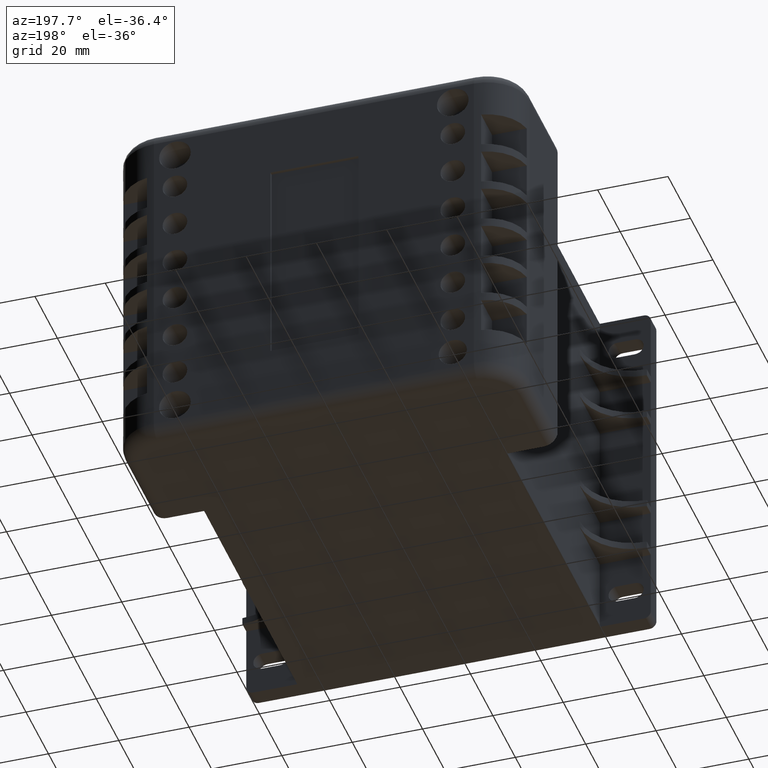
[diagram: clean part render]
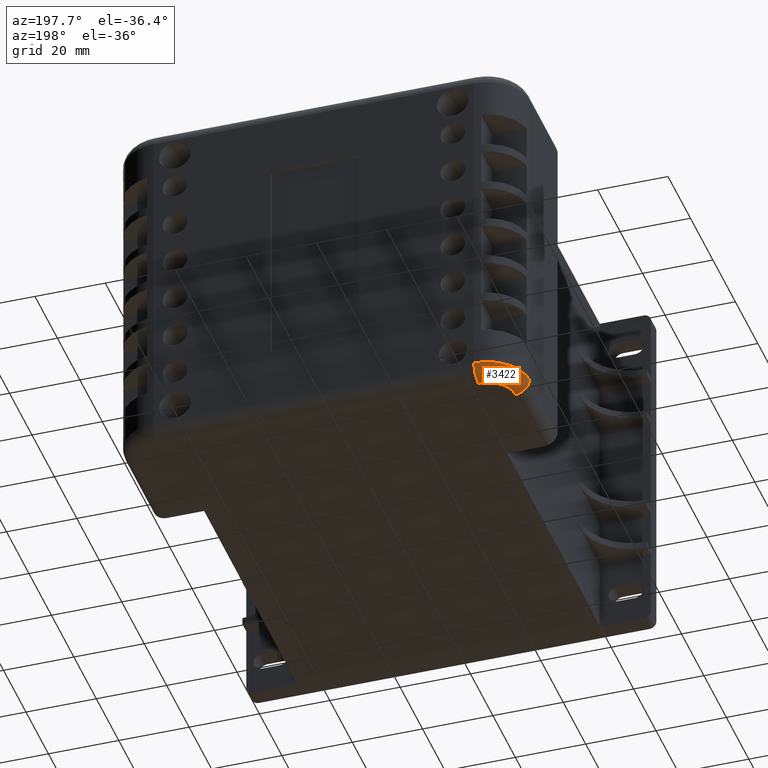
[diagram: same view with one face highlighted and labeled with its STEP entity id]
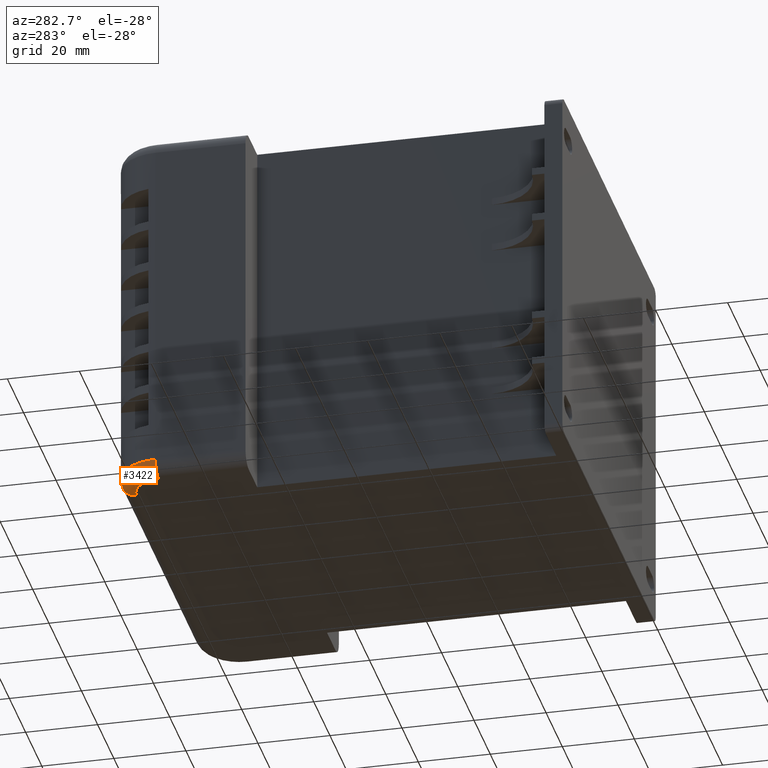
[diagram: same view with one face highlighted and labeled with its STEP entity id]
A machine part, auxiliary view. The second image highlights one B-rep face of the part: STEP entity #3422.
A second angle (auxiliary view) of the same face is appended — the face is thin or edge-on in the first view.
In plain terms, the highlighted toroidal blend (fillet) surface has major radius 8 mm and minor (blend) radius 4 mm.
Its self-contained STEP definition (entity closure, byte-faithful):
#24=TOROIDAL_SURFACE('',#3807,8.,4.);
#132=CIRCLE('',#3729,8.);
#169=CIRCLE('',#3806,4.);
#170=CIRCLE('',#3808,4.00000000000003);
#171=CIRCLE('',#3809,12.);
#383=FACE_OUTER_BOUND('',#594,.T.);
#594=EDGE_LOOP('',(#2626,#2627,#2628,#2629));
#1484=VERTEX_POINT('',#5370);
#1485=VERTEX_POINT('',#5372);
#1530=VERTEX_POINT('',#5525);
#1531=VERTEX_POINT('',#5529);
#1849=EDGE_CURVE('',#1485,#1484,#132,.T.);
#1917=EDGE_CURVE('',#1485,#1530,#169,.T.);
#1919=EDGE_CURVE('',#1484,#1531,#170,.T.);
#1920=EDGE_CURVE('',#1531,#1530,#171,.T.);
#2626=ORIENTED_EDGE('',*,*,#1919,.T.);
#2627=ORIENTED_EDGE('',*,*,#1920,.T.);
#2628=ORIENTED_EDGE('',*,*,#1917,.F.);
#2629=ORIENTED_EDGE('',*,*,#1849,.T.);
#3422=ADVANCED_FACE('',(#383),#24,.T.);
#3729=AXIS2_PLACEMENT_3D('',#5373,#4392,#4393);
#3806=AXIS2_PLACEMENT_3D('',#5526,#4577,#4578);
#3807=AXIS2_PLACEMENT_3D('',#5528,#4580,#4581);
#3808=AXIS2_PLACEMENT_3D('',#5530,#4582,#4583);
#3809=AXIS2_PLACEMENT_3D('',#5531,#4584,#4585);
#4392=DIRECTION('center_axis',(1.71491501135003E-32,0.,1.));
#4393=DIRECTION('ref_axis',(-0.707106781186549,0.707106781186546,1.21262803368421E-32));
#4577=DIRECTION('center_axis',(1.,0.,0.));
#4578=DIRECTION('ref_axis',(0.,0.,-1.));
#4580=DIRECTION('center_axis',(1.71491501135003E-32,0.,1.));
#4581=DIRECTION('ref_axis',(1.,0.,0.));
#4582=DIRECTION('center_axis',(0.,1.,0.));
#4583=DIRECTION('ref_axis',(0.,0.,-1.));
#4584=DIRECTION('center_axis',(-1.71491501135003E-32,0.,-1.));
#4585=DIRECTION('ref_axis',(-0.707106781186549,0.707106781186546,0.));
#5370=CARTESIAN_POINT('',(-111.,25.,1.37193200908002E-31));
#5372=CARTESIAN_POINT('',(-103.,33.,1.27332439592739E-30));
#5373=CARTESIAN_POINT('Origin',(-103.,25.,0.));
#5525=CARTESIAN_POINT('',(-103.,37.,4.));
#5526=CARTESIAN_POINT('Origin',(-103.,33.,4.));
#5528=CARTESIAN_POINT('Origin',(-103.,25.,4.00000000000003));
#5529=CARTESIAN_POINT('',(-115.,25.,4.00000000000003));
#5530=CARTESIAN_POINT('Origin',(-111.,25.,4.00000000000003));
#5531=CARTESIAN_POINT('Origin',(-103.,25.,4.00000000000003));